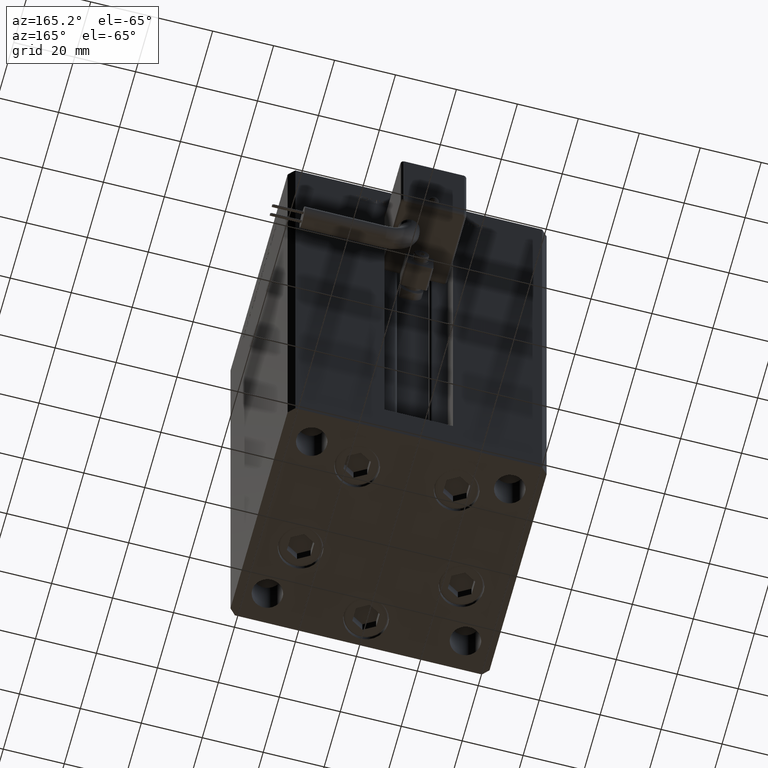
[diagram: clean part render]
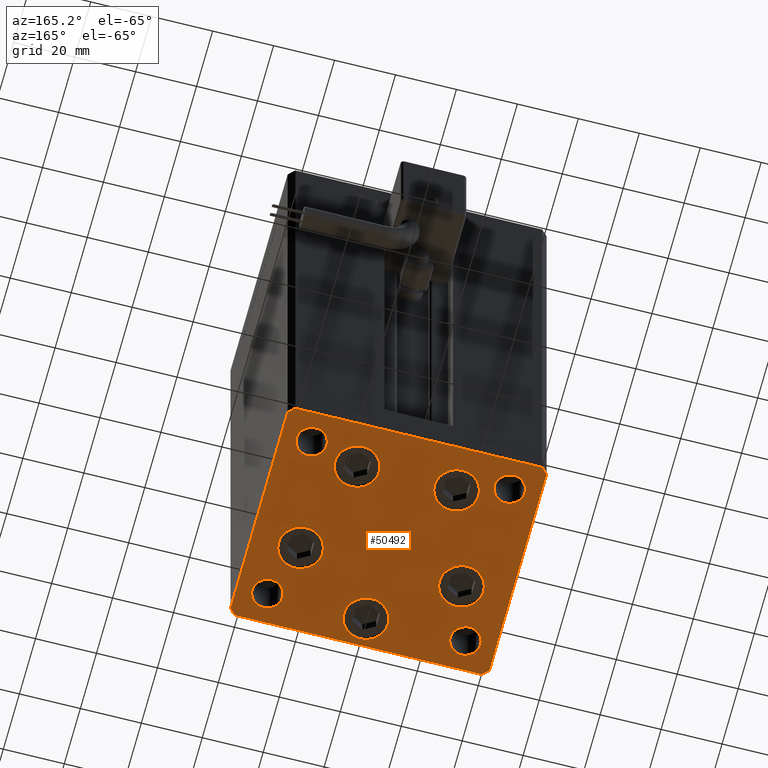
[diagram: same view with one face highlighted and labeled with its STEP entity id]
A machine part, auxiliary view. The second image highlights one B-rep face of the part: STEP entity #50492.
In plain terms, the highlighted planar face has unit normal (0, 0, -1).
Its self-contained STEP definition (entity closure, byte-faithful):
#163 = DIRECTION ( 'NONE',  ( -0.000000000000000000, 0.000000000000000000, 1.000000000000000000 ) ) ;
#474 = VERTEX_POINT ( 'NONE', #41331 ) ;
#495 = PLANE ( 'NONE',  #35794 ) ;
#603 = CARTESIAN_POINT ( 'NONE',  ( -40.50000000000000711, 37.49999999999997868, 0.000000000000000000 ) ) ;
#697 = CIRCLE ( 'NONE', #30977, 7.250000000000000000 ) ;
#724 = CARTESIAN_POINT ( 'NONE',  ( 32.50000000000000000, 27.49999999999999645, 0.000000000000000000 ) ) ;
#1332 = CARTESIAN_POINT ( 'NONE',  ( -40.49999999999999289, -37.50000000000002132, 0.000000000000000000 ) ) ;
#1426 = DIRECTION ( 'NONE',  ( 1.000000000000000000, 0.000000000000000000, 0.000000000000000000 ) ) ;
#1488 = VERTEX_POINT ( 'NONE', #42494 ) ;
#1960 = CIRCLE ( 'NONE', #30469, 5.000000000000000888 ) ;
#2589 = ORIENTED_EDGE ( 'NONE', *, *, #37020, .T. ) ;
#2631 = DIRECTION ( 'NONE',  ( 0.7071067811865463515, -0.7071067811865487940, 0.000000000000000000 ) ) ;
#2762 = LINE ( 'NONE', #33460, #26822 ) ;
#2855 = EDGE_CURVE ( 'NONE', #1488, #474, #3892, .T. ) ;
#2937 = VERTEX_POINT ( 'NONE', #2950 ) ;
#2950 = CARTESIAN_POINT ( 'NONE',  ( 42.50000000000000711, -35.50000000000000000, 0.000000000000000000 ) ) ;
#3175 = DIRECTION ( 'NONE',  ( -0.7071067811865474617, 0.7071067811865474617, 0.000000000000000000 ) ) ;
#3675 = DIRECTION ( 'NONE',  ( -1.172770800660376741E-15, 1.000000000000000000, 0.000000000000000000 ) ) ;
#3811 = EDGE_CURVE ( 'NONE', #25226, #7988, #36013, .T. ) ;
#3892 = CIRCLE ( 'NONE', #11036, 7.249999999999999112 ) ;
#3970 = ORIENTED_EDGE ( 'NONE', *, *, #2855, .T. ) ;
#4039 = EDGE_CURVE ( 'NONE', #11420, #23402, #19933, .T. ) ;
#4059 = ORIENTED_EDGE ( 'NONE', *, *, #4039, .T. ) ;
#4157 = CARTESIAN_POINT ( 'NONE',  ( -26.39865316429776954, -9.333333333333337478, 0.000000000000000000 ) ) ;
#4242 = ORIENTED_EDGE ( 'NONE', *, *, #19036, .T. ) ;
#4915 = DIRECTION ( 'NONE',  ( 1.000000000000000000, 0.000000000000000000, 0.000000000000000000 ) ) ;
#4974 = EDGE_CURVE ( 'NONE', #474, #1488, #52104, .T. ) ;
#4975 = ORIENTED_EDGE ( 'NONE', *, *, #6193, .F. ) ;
#5204 = DIRECTION ( 'NONE',  ( 1.000000000000000000, 0.000000000000000000, 0.000000000000000000 ) ) ;
#5211 = CIRCLE ( 'NONE', #39078, 7.249999999999999112 ) ;
#5299 = EDGE_CURVE ( 'NONE', #2937, #11420, #15970, .T. ) ;
#5353 = CARTESIAN_POINT ( 'NONE',  ( 32.50000000000000000, -27.49999999999999645, 0.000000000000000000 ) ) ;
#5373 = VERTEX_POINT ( 'NONE', #12921 ) ;
#5501 = FACE_BOUND ( 'NONE', #52855, .T. ) ;
#5785 = CARTESIAN_POINT ( 'NONE',  ( 37.50000000000000000, -27.49999999999999645, 0.000000000000000000 ) ) ;
#6193 = EDGE_CURVE ( 'NONE', #7988, #25226, #53721, .T. ) ;
#6356 = AXIS2_PLACEMENT_3D ( 'NONE', #43450, #51549, #38454 ) ;
#7098 = DIRECTION ( 'NONE',  ( 1.000000000000000000, 0.000000000000000000, 0.000000000000000000 ) ) ;
#7198 = CIRCLE ( 'NONE', #30392, 4.999999999999997335 ) ;
#7265 = DIRECTION ( 'NONE',  ( 0.000000000000000000, -0.000000000000000000, -1.000000000000000000 ) ) ;
#7384 = EDGE_CURVE ( 'NONE', #23402, #26015, #10695, .T. ) ;
#7988 = VERTEX_POINT ( 'NONE', #35877 ) ;
#8241 = CARTESIAN_POINT ( 'NONE',  ( -42.50000000000000711, 35.49999999999997158, 0.000000000000000000 ) ) ;
#8819 = AXIS2_PLACEMENT_3D ( 'NONE', #23263, #52839, #48916 ) ;
#8891 = FACE_BOUND ( 'NONE', #42757, .T. ) ;
#9069 = ORIENTED_EDGE ( 'NONE', *, *, #39389, .T. ) ;
#9186 = DIRECTION ( 'NONE',  ( 1.000000000000000000, 0.000000000000000000, 0.000000000000000000 ) ) ;
#9444 = FACE_BOUND ( 'NONE', #29688, .T. ) ;
#9965 = ORIENTED_EDGE ( 'NONE', *, *, #20286, .T. ) ;
#10025 = EDGE_CURVE ( 'NONE', #47443, #48236, #36146, .T. ) ;
#10695 = LINE ( 'NONE', #44178, #31452 ) ;
#11036 = AXIS2_PLACEMENT_3D ( 'NONE', #44268, #30891, #44811 ) ;
#11068 = VERTEX_POINT ( 'NONE', #41962 ) ;
#11377 = CARTESIAN_POINT ( 'NONE',  ( 3.429011037612589276E-15, -28.00000000000000000, 0.000000000000000000 ) ) ;
#11420 = VERTEX_POINT ( 'NONE', #47991 ) ;
#11898 = EDGE_LOOP ( 'NONE', ( #37738, #9965, #12979, #48311, #4059, #35822, #17694, #2589 ) ) ;
#12004 = AXIS2_PLACEMENT_3D ( 'NONE', #27831, #36487, #41773 ) ;
#12184 = ORIENTED_EDGE ( 'NONE', *, *, #31915, .F. ) ;
#12315 = AXIS2_PLACEMENT_3D ( 'NONE', #33571, #15998, #16548 ) ;
#12492 = DIRECTION ( 'NONE',  ( -0.000000000000000000, 0.000000000000000000, 1.000000000000000000 ) ) ;
#12639 = CARTESIAN_POINT ( 'NONE',  ( 40.50000000000000000, -37.50000000000000711, 0.000000000000000000 ) ) ;
#12730 = CARTESIAN_POINT ( 'NONE',  ( -32.50000000000000000, -27.49999999999999645, 0.000000000000000000 ) ) ;
#12851 = DIRECTION ( 'NONE',  ( 0.000000000000000000, -0.000000000000000000, -1.000000000000000000 ) ) ;
#12921 = CARTESIAN_POINT ( 'NONE',  ( -37.50000000000000711, -27.49999999999999645, 0.000000000000000000 ) ) ;
#12964 = EDGE_CURVE ( 'NONE', #15306, #49136, #44164, .T. ) ;
#12979 = ORIENTED_EDGE ( 'NONE', *, *, #36272, .T. ) ;
#13009 = ORIENTED_EDGE ( 'NONE', *, *, #38158, .T. ) ;
#13012 = DIRECTION ( 'NONE',  ( 1.000000000000000000, 0.000000000000000000, 0.000000000000000000 ) ) ;
#13102 = DIRECTION ( 'NONE',  ( -0.000000000000000000, 0.000000000000000000, 1.000000000000000000 ) ) ;
#13658 = LINE ( 'NONE', #1332, #52401 ) ;
#13929 = DIRECTION ( 'NONE',  ( 1.000000000000000000, 1.713307136767217096E-16, 0.000000000000000000 ) ) ;
#14164 = FACE_BOUND ( 'NONE', #49122, .T. ) ;
#15306 = VERTEX_POINT ( 'NONE', #5785 ) ;
#15433 = ORIENTED_EDGE ( 'NONE', *, *, #43924, .T. ) ;
#15519 = ORIENTED_EDGE ( 'NONE', *, *, #51269, .T. ) ;
#15802 = CARTESIAN_POINT ( 'NONE',  ( 32.50000000000000000, 27.49999999999999645, 0.000000000000000000 ) ) ;
#15970 = LINE ( 'NONE', #41916, #42311 ) ;
#15998 = DIRECTION ( 'NONE',  ( 0.000000000000000000, -0.000000000000000000, -1.000000000000000000 ) ) ;
#16239 = CARTESIAN_POINT ( 'NONE',  ( -27.50000000000000000, 27.50000000000000355, 0.000000000000000000 ) ) ;
#16548 = DIRECTION ( 'NONE',  ( 1.000000000000000000, 0.000000000000000000, 0.000000000000000000 ) ) ;
#16754 = AXIS2_PLACEMENT_3D ( 'NONE', #11377, #44847, #24197 ) ;
#17536 = DIRECTION ( 'NONE',  ( 0.000000000000000000, -0.000000000000000000, -1.000000000000000000 ) ) ;
#17694 = ORIENTED_EDGE ( 'NONE', *, *, #39223, .T. ) ;
#17798 = FACE_OUTER_BOUND ( 'NONE', #11898, .T. ) ;
#18169 = EDGE_CURVE ( 'NONE', #11068, #44078, #34540, .T. ) ;
#18517 = VERTEX_POINT ( 'NONE', #26885 ) ;
#19036 = EDGE_CURVE ( 'NONE', #42496, #18517, #697, .T. ) ;
#19707 = EDGE_LOOP ( 'NONE', ( #3970, #37003 ) ) ;
#19840 = VERTEX_POINT ( 'NONE', #51655 ) ;
#19933 = LINE ( 'NONE', #55070, #45846 ) ;
#20286 = EDGE_CURVE ( 'NONE', #48236, #53384, #13658, .T. ) ;
#20592 = EDGE_CURVE ( 'NONE', #18517, #42496, #46952, .T. ) ;
#20712 = VERTEX_POINT ( 'NONE', #30857 ) ;
#21020 = CARTESIAN_POINT ( 'NONE',  ( -23.57291334290543006, 22.74999999999999645, 0.000000000000000000 ) ) ;
#21183 = EDGE_CURVE ( 'NONE', #53665, #33988, #43405, .T. ) ;
#21303 = VECTOR ( 'NONE', #37551, 1000.000000000000000 ) ;
#22520 = FACE_BOUND ( 'NONE', #45834, .T. ) ;
#22559 = CARTESIAN_POINT ( 'NONE',  ( -19.14865316429777309, -9.333333333333335702, 0.000000000000000000 ) ) ;
#22651 = VECTOR ( 'NONE', #2631, 1000.000000000000000 ) ;
#22970 = ORIENTED_EDGE ( 'NONE', *, *, #23907, .T. ) ;
#23263 = CARTESIAN_POINT ( 'NONE',  ( -26.39865316429776954, -9.333333333333337478, 0.000000000000000000 ) ) ;
#23402 = VERTEX_POINT ( 'NONE', #39004 ) ;
#23651 = AXIS2_PLACEMENT_3D ( 'NONE', #48406, #40039, #52325 ) ;
#23907 = EDGE_CURVE ( 'NONE', #20712, #19840, #31014, .T. ) ;
#24003 = DIRECTION ( 'NONE',  ( 1.000000000000000000, 0.000000000000000000, 0.000000000000000000 ) ) ;
#24062 = CARTESIAN_POINT ( 'NONE',  ( -42.50000000000000711, 35.49999999999997158, 0.000000000000000000 ) ) ;
#24197 = DIRECTION ( 'NONE',  ( 1.000000000000000000, 0.000000000000000000, 0.000000000000000000 ) ) ;
#24844 = AXIS2_PLACEMENT_3D ( 'NONE', #12730, #30279, #13012 ) ;
#25226 = VERTEX_POINT ( 'NONE', #16239 ) ;
#25557 = ORIENTED_EDGE ( 'NONE', *, *, #3811, .F. ) ;
#25895 = FACE_BOUND ( 'NONE', #41635, .T. ) ;
#26015 = VERTEX_POINT ( 'NONE', #603 ) ;
#26185 = CARTESIAN_POINT ( 'NONE',  ( -32.50000000000000000, 27.50000000000000355, 0.000000000000000000 ) ) ;
#26644 = VERTEX_POINT ( 'NONE', #8241 ) ;
#26822 = VECTOR ( 'NONE', #54379, 1000.000000000000114 ) ;
#26885 = CARTESIAN_POINT ( 'NONE',  ( 7.250000000000003553, -28.00000000000000000, 0.000000000000000000 ) ) ;
#27196 = CARTESIAN_POINT ( 'NONE',  ( 26.39865316429776954, -9.333333333333330373, 0.000000000000000000 ) ) ;
#27466 = DIRECTION ( 'NONE',  ( 0.000000000000000000, -0.000000000000000000, -1.000000000000000000 ) ) ;
#27831 = CARTESIAN_POINT ( 'NONE',  ( 16.32291334290542295, 22.75000000000000000, 0.000000000000000000 ) ) ;
#27930 = EDGE_LOOP ( 'NONE', ( #41375, #34993 ) ) ;
#28843 = VERTEX_POINT ( 'NONE', #50075 ) ;
#29688 = EDGE_LOOP ( 'NONE', ( #12184, #38591 ) ) ;
#30279 = DIRECTION ( 'NONE',  ( 0.000000000000000000, -0.000000000000000000, -1.000000000000000000 ) ) ;
#30331 = CARTESIAN_POINT ( 'NONE',  ( 3.429011037612589276E-15, -28.00000000000000000, 0.000000000000000000 ) ) ;
#30392 = AXIS2_PLACEMENT_3D ( 'NONE', #5353, #44397, #1426 ) ;
#30400 = DIRECTION ( 'NONE',  ( 1.000000000000000000, 0.000000000000000000, 0.000000000000000000 ) ) ;
#30469 = AXIS2_PLACEMENT_3D ( 'NONE', #39015, #17536, #31173 ) ;
#30478 = ORIENTED_EDGE ( 'NONE', *, *, #47082, .T. ) ;
#30857 = CARTESIAN_POINT ( 'NONE',  ( 33.64865316429776954, -9.333333333333328596, 0.000000000000000000 ) ) ;
#30891 = DIRECTION ( 'NONE',  ( 0.000000000000000000, -0.000000000000000000, -1.000000000000000000 ) ) ;
#30977 = AXIS2_PLACEMENT_3D ( 'NONE', #30331, #54887, #5204 ) ;
#31014 = CIRCLE ( 'NONE', #12315, 7.249999999999999112 ) ;
#31165 = CARTESIAN_POINT ( 'NONE',  ( 0.000000000000000000, 0.000000000000000000, 0.000000000000000000 ) ) ;
#31173 = DIRECTION ( 'NONE',  ( 1.000000000000000000, 0.000000000000000000, 0.000000000000000000 ) ) ;
#31452 = VECTOR ( 'NONE', #40547, 1000.000000000000000 ) ;
#31915 = EDGE_CURVE ( 'NONE', #44078, #11068, #34883, .T. ) ;
#31978 = ORIENTED_EDGE ( 'NONE', *, *, #49467, .T. ) ;
#32502 = CARTESIAN_POINT ( 'NONE',  ( -7.249999999999997335, -28.00000000000000000, 0.000000000000000000 ) ) ;
#33460 = CARTESIAN_POINT ( 'NONE',  ( 40.50000000000000000, -37.50000000000000711, 0.000000000000000000 ) ) ;
#33571 = CARTESIAN_POINT ( 'NONE',  ( 26.39865316429776954, -9.333333333333330373, 0.000000000000000000 ) ) ;
#33988 = VERTEX_POINT ( 'NONE', #42521 ) ;
#34540 = CIRCLE ( 'NONE', #38073, 4.999999999999997335 ) ;
#34550 = FACE_BOUND ( 'NONE', #52567, .T. ) ;
#34810 = AXIS2_PLACEMENT_3D ( 'NONE', #27196, #27466, #7098 ) ;
#34883 = CIRCLE ( 'NONE', #54464, 4.999999999999997335 ) ;
#34993 = ORIENTED_EDGE ( 'NONE', *, *, #21183, .T. ) ;
#35483 = VECTOR ( 'NONE', #49729, 1000.000000000000000 ) ;
#35606 = VERTEX_POINT ( 'NONE', #42395 ) ;
#35794 = AXIS2_PLACEMENT_3D ( 'NONE', #31165, #51561, #52373 ) ;
#35822 = ORIENTED_EDGE ( 'NONE', *, *, #7384, .T. ) ;
#35877 = CARTESIAN_POINT ( 'NONE',  ( -37.50000000000000711, 27.50000000000000355, 0.000000000000000000 ) ) ;
#36013 = CIRCLE ( 'NONE', #49374, 5.000000000000000888 ) ;
#36146 = LINE ( 'NONE', #45330, #22651 ) ;
#36272 = EDGE_CURVE ( 'NONE', #53384, #2937, #2762, .T. ) ;
#36311 = CARTESIAN_POINT ( 'NONE',  ( 37.50000000000000000, 27.49999999999999645, 0.000000000000000000 ) ) ;
#36487 = DIRECTION ( 'NONE',  ( 0.000000000000000000, -0.000000000000000000, -1.000000000000000000 ) ) ;
#37003 = ORIENTED_EDGE ( 'NONE', *, *, #4974, .T. ) ;
#37020 = EDGE_CURVE ( 'NONE', #26644, #47443, #49175, .T. ) ;
#37410 = CARTESIAN_POINT ( 'NONE',  ( 27.50000000000000355, -27.49999999999999645, 0.000000000000000000 ) ) ;
#37551 = DIRECTION ( 'NONE',  ( -0.7071067811865463515, -0.7071067811865487940, 0.000000000000000000 ) ) ;
#37738 = ORIENTED_EDGE ( 'NONE', *, *, #10025, .T. ) ;
#37827 = CARTESIAN_POINT ( 'NONE',  ( -40.50000000000000711, 37.49999999999997868, 0.000000000000000000 ) ) ;
#38073 = AXIS2_PLACEMENT_3D ( 'NONE', #724, #12492, #52335 ) ;
#38158 = EDGE_CURVE ( 'NONE', #28843, #50660, #5211, .T. ) ;
#38454 = DIRECTION ( 'NONE',  ( 1.000000000000000000, 0.000000000000000000, 0.000000000000000000 ) ) ;
#38479 = EDGE_CURVE ( 'NONE', #33988, #53665, #47981, .T. ) ;
#38591 = ORIENTED_EDGE ( 'NONE', *, *, #18169, .F. ) ;
#39004 = CARTESIAN_POINT ( 'NONE',  ( 40.49999999999991473, 37.50000000000000711, 0.000000000000000000 ) ) ;
#39015 = CARTESIAN_POINT ( 'NONE',  ( -32.50000000000000000, -27.49999999999999645, 0.000000000000000000 ) ) ;
#39078 = AXIS2_PLACEMENT_3D ( 'NONE', #48568, #7265, #24003 ) ;
#39192 = ORIENTED_EDGE ( 'NONE', *, *, #20592, .T. ) ;
#39223 = EDGE_CURVE ( 'NONE', #26015, #26644, #46464, .T. ) ;
#39325 = CARTESIAN_POINT ( 'NONE',  ( -40.49999999999999289, -37.50000000000002132, 0.000000000000000000 ) ) ;
#39389 = EDGE_CURVE ( 'NONE', #5373, #35606, #39978, .T. ) ;
#39487 = CARTESIAN_POINT ( 'NONE',  ( -32.50000000000000000, 27.50000000000000355, 0.000000000000000000 ) ) ;
#39978 = CIRCLE ( 'NONE', #24844, 5.000000000000000888 ) ;
#40039 = DIRECTION ( 'NONE',  ( 0.000000000000000000, -0.000000000000000000, -1.000000000000000000 ) ) ;
#40547 = DIRECTION ( 'NONE',  ( -1.000000000000000000, -3.426614273534436165E-16, 0.000000000000000000 ) ) ;
#41194 = DIRECTION ( 'NONE',  ( -0.000000000000000000, 0.000000000000000000, 1.000000000000000000 ) ) ;
#41331 = CARTESIAN_POINT ( 'NONE',  ( 23.57291334290542295, 22.75000000000000000, 0.000000000000000000 ) ) ;
#41375 = ORIENTED_EDGE ( 'NONE', *, *, #38479, .T. ) ;
#41635 = EDGE_LOOP ( 'NONE', ( #31978, #13009 ) ) ;
#41773 = DIRECTION ( 'NONE',  ( 1.000000000000000000, 0.000000000000000000, 0.000000000000000000 ) ) ;
#41916 = CARTESIAN_POINT ( 'NONE',  ( 42.50000000000000711, -35.50000000000000000, 0.000000000000000000 ) ) ;
#41962 = CARTESIAN_POINT ( 'NONE',  ( 27.50000000000000355, 27.49999999999999645, 0.000000000000000000 ) ) ;
#42311 = VECTOR ( 'NONE', #3675, 1000.000000000000000 ) ;
#42395 = CARTESIAN_POINT ( 'NONE',  ( -27.50000000000000000, -27.49999999999999645, 0.000000000000000000 ) ) ;
#42494 = CARTESIAN_POINT ( 'NONE',  ( 9.072913342905424727, 22.75000000000000000, 0.000000000000000000 ) ) ;
#42496 = VERTEX_POINT ( 'NONE', #32502 ) ;
#42521 = CARTESIAN_POINT ( 'NONE',  ( -33.64865316429776954, -9.333333333333337478, 0.000000000000000000 ) ) ;
#42648 = FACE_BOUND ( 'NONE', #19707, .T. ) ;
#42757 = EDGE_LOOP ( 'NONE', ( #15519, #9069 ) ) ;
#43148 = AXIS2_PLACEMENT_3D ( 'NONE', #26185, #13102, #9186 ) ;
#43405 = CIRCLE ( 'NONE', #46990, 7.249999999999999112 ) ;
#43450 = CARTESIAN_POINT ( 'NONE',  ( -16.32291334290543006, 22.74999999999999645, 0.000000000000000000 ) ) ;
#43719 = CIRCLE ( 'NONE', #34810, 7.249999999999999112 ) ;
#43924 = EDGE_CURVE ( 'NONE', #49136, #15306, #7198, .T. ) ;
#44078 = VERTEX_POINT ( 'NONE', #36311 ) ;
#44164 = CIRCLE ( 'NONE', #23651, 4.999999999999997335 ) ;
#44178 = CARTESIAN_POINT ( 'NONE',  ( 40.49999999999991473, 37.50000000000000711, 0.000000000000000000 ) ) ;
#44268 = CARTESIAN_POINT ( 'NONE',  ( 16.32291334290542295, 22.75000000000000000, 0.000000000000000000 ) ) ;
#44377 = CARTESIAN_POINT ( 'NONE',  ( -42.50000000000000000, -35.50000000000000711, 0.000000000000000000 ) ) ;
#44397 = DIRECTION ( 'NONE',  ( 0.000000000000000000, -0.000000000000000000, -1.000000000000000000 ) ) ;
#44811 = DIRECTION ( 'NONE',  ( 1.000000000000000000, 0.000000000000000000, 0.000000000000000000 ) ) ;
#44815 = ORIENTED_EDGE ( 'NONE', *, *, #12964, .T. ) ;
#44847 = DIRECTION ( 'NONE',  ( 0.000000000000000000, -0.000000000000000000, -1.000000000000000000 ) ) ;
#45330 = CARTESIAN_POINT ( 'NONE',  ( -42.50000000000000000, -35.50000000000000711, 0.000000000000000000 ) ) ;
#45834 = EDGE_LOOP ( 'NONE', ( #25557, #4975 ) ) ;
#45846 = VECTOR ( 'NONE', #3175, 1000.000000000000114 ) ;
#46464 = LINE ( 'NONE', #37827, #21303 ) ;
#46952 = CIRCLE ( 'NONE', #16754, 7.250000000000000000 ) ;
#46990 = AXIS2_PLACEMENT_3D ( 'NONE', #4157, #12851, #30400 ) ;
#47082 = EDGE_CURVE ( 'NONE', #19840, #20712, #43719, .T. ) ;
#47101 = FACE_BOUND ( 'NONE', #27930, .T. ) ;
#47443 = VERTEX_POINT ( 'NONE', #44377 ) ;
#47981 = CIRCLE ( 'NONE', #8819, 7.249999999999999112 ) ;
#47991 = CARTESIAN_POINT ( 'NONE',  ( 42.49999999999992895, 35.50000000000000000, 0.000000000000000000 ) ) ;
#48236 = VERTEX_POINT ( 'NONE', #39325 ) ;
#48311 = ORIENTED_EDGE ( 'NONE', *, *, #5299, .T. ) ;
#48406 = CARTESIAN_POINT ( 'NONE',  ( 32.50000000000000000, -27.49999999999999645, 0.000000000000000000 ) ) ;
#48568 = CARTESIAN_POINT ( 'NONE',  ( -16.32291334290543006, 22.74999999999999645, 0.000000000000000000 ) ) ;
#48916 = DIRECTION ( 'NONE',  ( 1.000000000000000000, 0.000000000000000000, 0.000000000000000000 ) ) ;
#49122 = EDGE_LOOP ( 'NONE', ( #30478, #22970 ) ) ;
#49136 = VERTEX_POINT ( 'NONE', #37410 ) ;
#49175 = LINE ( 'NONE', #24062, #35483 ) ;
#49374 = AXIS2_PLACEMENT_3D ( 'NONE', #39487, #163, #4915 ) ;
#49467 = EDGE_CURVE ( 'NONE', #50660, #28843, #53588, .T. ) ;
#49729 = DIRECTION ( 'NONE',  ( 9.773090005503140331E-17, -1.000000000000000000, 0.000000000000000000 ) ) ;
#49828 = DIRECTION ( 'NONE',  ( 1.000000000000000000, 0.000000000000000000, 0.000000000000000000 ) ) ;
#50075 = CARTESIAN_POINT ( 'NONE',  ( -9.072913342905431833, 22.74999999999999645, 0.000000000000000000 ) ) ;
#50492 = ADVANCED_FACE ( 'NONE', ( #25895, #42648, #14164, #34550, #47101, #9444, #5501, #22520, #17798, #8891 ), #495, .T. ) ;
#50660 = VERTEX_POINT ( 'NONE', #21020 ) ;
#51269 = EDGE_CURVE ( 'NONE', #35606, #5373, #1960, .T. ) ;
#51549 = DIRECTION ( 'NONE',  ( 0.000000000000000000, -0.000000000000000000, -1.000000000000000000 ) ) ;
#51561 = DIRECTION ( 'NONE',  ( -0.000000000000000000, 0.000000000000000000, 1.000000000000000000 ) ) ;
#51655 = CARTESIAN_POINT ( 'NONE',  ( 19.14865316429777309, -9.333333333333330373, 0.000000000000000000 ) ) ;
#52104 = CIRCLE ( 'NONE', #12004, 7.249999999999999112 ) ;
#52325 = DIRECTION ( 'NONE',  ( 1.000000000000000000, 0.000000000000000000, 0.000000000000000000 ) ) ;
#52335 = DIRECTION ( 'NONE',  ( 1.000000000000000000, 0.000000000000000000, 0.000000000000000000 ) ) ;
#52373 = DIRECTION ( 'NONE',  ( 1.000000000000000000, 0.000000000000000000, 0.000000000000000000 ) ) ;
#52401 = VECTOR ( 'NONE', #13929, 1000.000000000000000 ) ;
#52567 = EDGE_LOOP ( 'NONE', ( #4242, #39192 ) ) ;
#52839 = DIRECTION ( 'NONE',  ( 0.000000000000000000, -0.000000000000000000, -1.000000000000000000 ) ) ;
#52855 = EDGE_LOOP ( 'NONE', ( #44815, #15433 ) ) ;
#53384 = VERTEX_POINT ( 'NONE', #12639 ) ;
#53588 = CIRCLE ( 'NONE', #6356, 7.249999999999999112 ) ;
#53665 = VERTEX_POINT ( 'NONE', #22559 ) ;
#53721 = CIRCLE ( 'NONE', #43148, 5.000000000000000888 ) ;
#54379 = DIRECTION ( 'NONE',  ( 0.7071067811865474617, 0.7071067811865474617, 0.000000000000000000 ) ) ;
#54464 = AXIS2_PLACEMENT_3D ( 'NONE', #15802, #41194, #49828 ) ;
#54887 = DIRECTION ( 'NONE',  ( 0.000000000000000000, -0.000000000000000000, -1.000000000000000000 ) ) ;
#55070 = CARTESIAN_POINT ( 'NONE',  ( 42.49999999999992895, 35.50000000000000000, 0.000000000000000000 ) ) ;